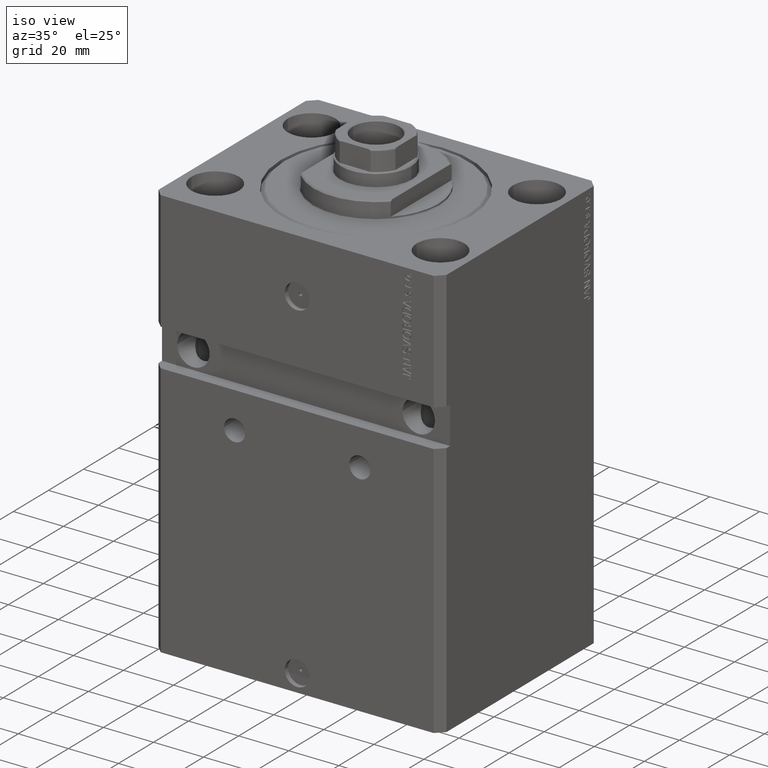
[diagram: clean part render]
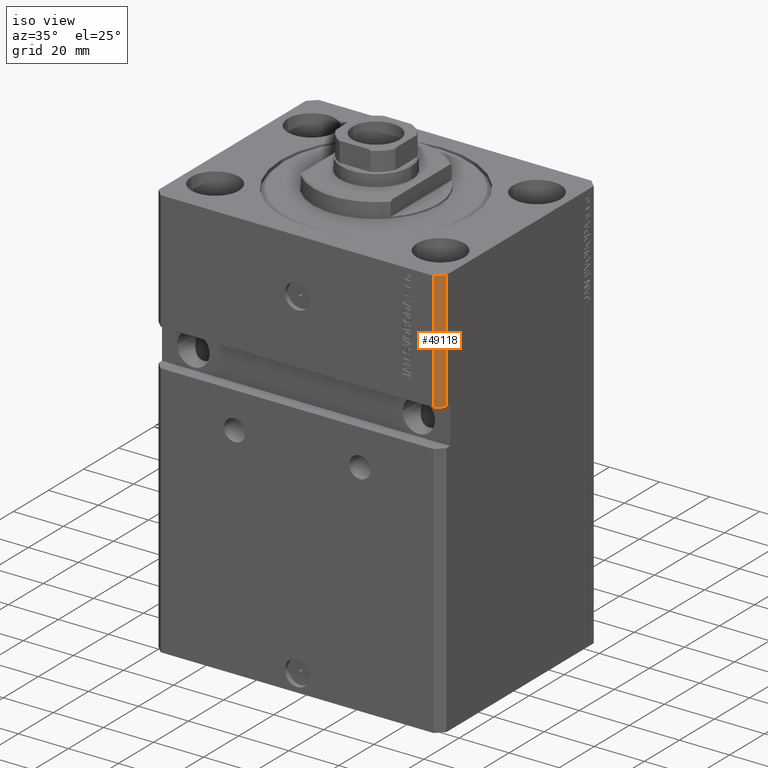
[diagram: same view with one face highlighted and labeled with its STEP entity id]
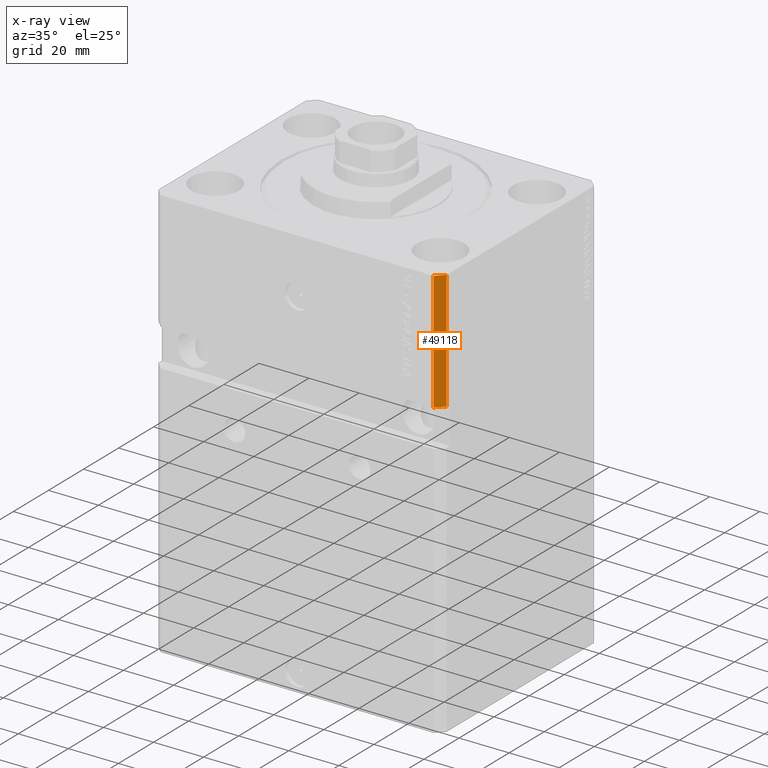
[diagram: x-ray of the same camera — body ghosted, the highlighted face saturated]
A machine part, iso view. The second image highlights one B-rep face of the part: STEP entity #49118.
The next image is the same camera in x-ray: the body ghosted, the highlighted face saturated — about 0% of this face is hidden behind the body in this view.
In plain terms, the highlighted planar face has unit normal (0.7071, -0.7071, 0).
Its self-contained STEP definition (entity closure, byte-faithful):
#3583 = LINE ( 'NONE', #10794, #36553 ) ;
#5908 = ORIENTED_EDGE ( 'NONE', *, *, #5942, .T. ) ;
#5942 = EDGE_CURVE ( 'NONE', #25064, #27046, #43541, .T. ) ;
#6256 = LINE ( 'NONE', #21935, #41300 ) ;
#7504 = CARTESIAN_POINT ( 'NONE',  ( 57.50000000000000711, -41.99999999999998579, 0.000000000000000000 ) ) ;
#9066 = ORIENTED_EDGE ( 'NONE', *, *, #15955, .F. ) ;
#9186 = CARTESIAN_POINT ( 'NONE',  ( 57.50000000000000711, -41.99999999999998579, -165.0000000000000000 ) ) ;
#9245 = ORIENTED_EDGE ( 'NONE', *, *, #42966, .F. ) ;
#10794 = CARTESIAN_POINT ( 'NONE',  ( 54.50000000000000711, -44.99999999999998579, -165.0000000000000000 ) ) ;
#14786 = VERTEX_POINT ( 'NONE', #17209 ) ;
#14934 = EDGE_CURVE ( 'NONE', #25064, #23925, #6256, .T. ) ;
#15159 = CARTESIAN_POINT ( 'NONE',  ( 54.50000000000000711, -44.99999999999998579, 0.000000000000000000 ) ) ;
#15668 = ORIENTED_EDGE ( 'NONE', *, *, #14934, .F. ) ;
#15955 = EDGE_CURVE ( 'NONE', #23925, #14786, #3583, .T. ) ;
#17209 = CARTESIAN_POINT ( 'NONE',  ( 54.50000000000000711, -44.99999999999998579, 0.000000000000000000 ) ) ;
#20969 = VECTOR ( 'NONE', #22400, 1000.000000000000000 ) ;
#21935 = CARTESIAN_POINT ( 'NONE',  ( 54.49999999999999289, -45.00000000000000000, -47.49999999999998579 ) ) ;
#22400 = DIRECTION ( 'NONE',  ( 0.7071067811865483499, 0.7071067811865466846, 0.000000000000000000 ) ) ;
#23925 = VERTEX_POINT ( 'NONE', #29372 ) ;
#24911 = LINE ( 'NONE', #15159, #20969 ) ;
#25064 = VERTEX_POINT ( 'NONE', #28102 ) ;
#25997 = DIRECTION ( 'NONE',  ( 0.000000000000000000, 0.000000000000000000, 1.000000000000000000 ) ) ;
#26857 = PLANE ( 'NONE',  #48896 ) ;
#27046 = VERTEX_POINT ( 'NONE', #7504 ) ;
#28102 = CARTESIAN_POINT ( 'NONE',  ( 57.50000000000000711, -41.99999999999998579, -47.49999999999998579 ) ) ;
#29372 = CARTESIAN_POINT ( 'NONE',  ( 54.50000000000000711, -44.99999999999998579, -47.49999999999998579 ) ) ;
#30610 = FACE_OUTER_BOUND ( 'NONE', #34359, .T. ) ;
#31123 = DIRECTION ( 'NONE',  ( 0.000000000000000000, 0.000000000000000000, 1.000000000000000000 ) ) ;
#34359 = EDGE_LOOP ( 'NONE', ( #15668, #5908, #9245, #9066 ) ) ;
#35056 = DIRECTION ( 'NONE',  ( 0.7071067811865466846, -0.7071067811865483499, 0.000000000000000000 ) ) ;
#35330 = VECTOR ( 'NONE', #31123, 1000.000000000000000 ) ;
#36553 = VECTOR ( 'NONE', #25997, 1000.000000000000000 ) ;
#36621 = DIRECTION ( 'NONE',  ( -0.7071067811865483499, -0.7071067811865466846, -1.279966678274818172E-16 ) ) ;
#41300 = VECTOR ( 'NONE', #36621, 1000.000000000000000 ) ;
#42966 = EDGE_CURVE ( 'NONE', #14786, #27046, #24911, .T. ) ;
#43017 = CARTESIAN_POINT ( 'NONE',  ( 54.50000000000000711, -44.99999999999998579, -165.0000000000000000 ) ) ;
#43541 = LINE ( 'NONE', #9186, #35330 ) ;
#46524 = DIRECTION ( 'NONE',  ( 0.7071067811865483499, 0.7071067811865466846, 0.000000000000000000 ) ) ;
#48896 = AXIS2_PLACEMENT_3D ( 'NONE', #43017, #35056, #46524 ) ;
#49118 = ADVANCED_FACE ( 'NONE', ( #30610 ), #26857, .T. ) ;